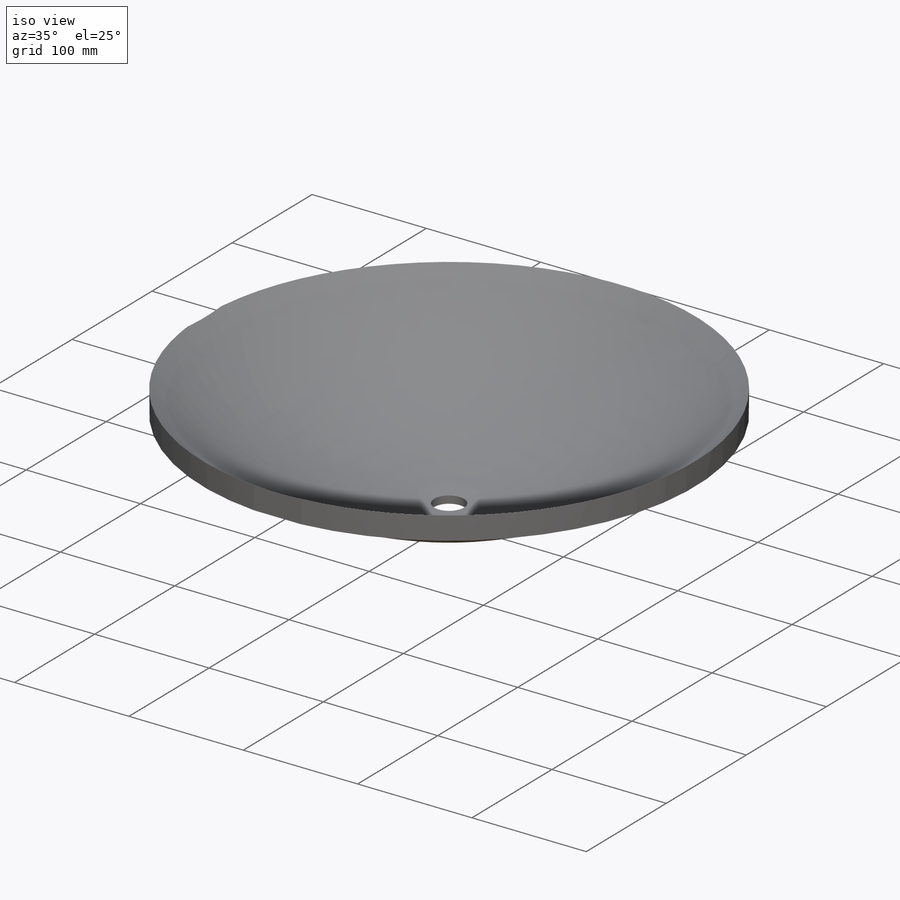
[diagram: iso view]
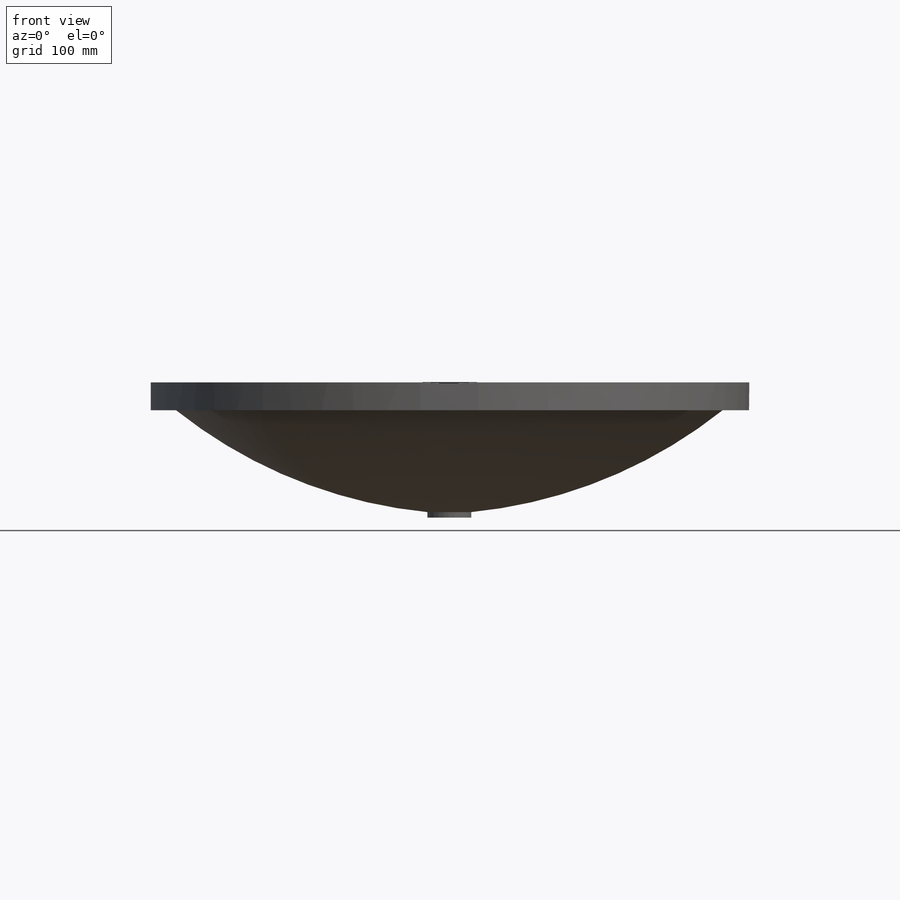
[diagram: front view]
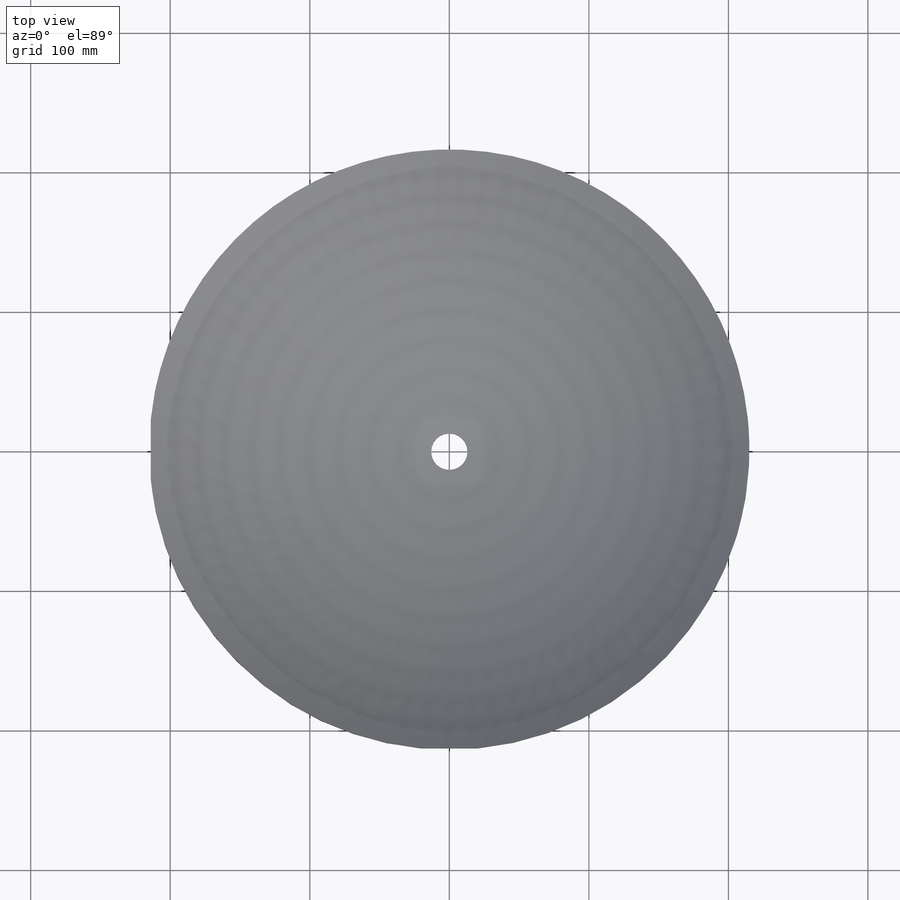
[diagram: top view]
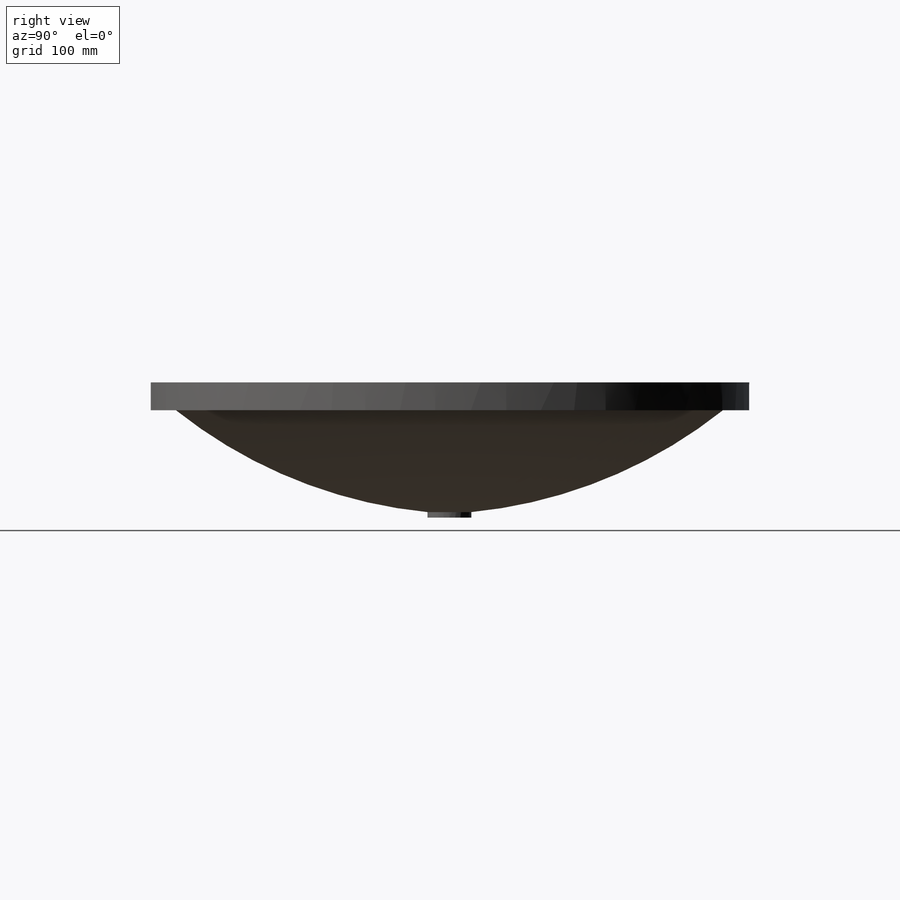
[diagram: right view]
SOLIDWORKS PART (.sldprt)
format: sldprt  version: not decoded by parser v0  size: 232,448 bytes
history: native  units: mm
features: plane x5, sketch x3, cut_extrude x2, material x1, revolve x1 (+13 scaffold rows collapsed)
feature tree (25):
  scaffold x13  (default folders/planes/origin — collapsed)
  material  "ABS"
  plane  "Vue de dessus"
  plane  "Vue de face"
  plane  "Plan de droite"
  sketch  "Esquisse2"  dims[c1.D1=97.0mm c1.D2=215.0mm c1.D3=20.0mm c1.D4=15.75mm c1.D5=13.0mm c1.D6=4.0mm c1.D7=2.5mm c1.D8=3.0mm c1.D9=128.4mm c2.D8=2.9mm c2.D10=3.0mm]
  revolve  "Révolution1"  Angle=360deg
  sketch  "Esquisse3"  dims[D1=214.0mm]
  cut_extrude  "Enlèv. mat.-Extru.1"  Depth=34mm
  plane  "Plan1"  Offset=217mm
  plane  "Plan2"  Offset=434mm
  sketch  "Esquisse4"  dims[D1=214.0mm]
  cut_extrude  "Enlèv. mat.-Extru.2"  Depth=41mm
decode coverage: 6 of 6 modeling features carry decoded parameters
note: suppression state not decoded; provenance and decode notes live in map.json
